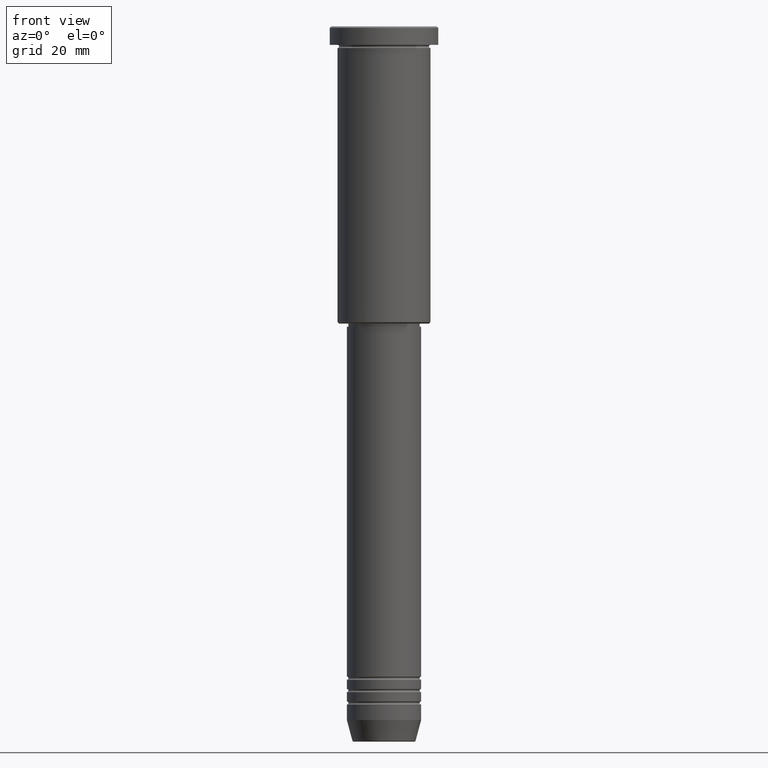
[diagram: clean part render]
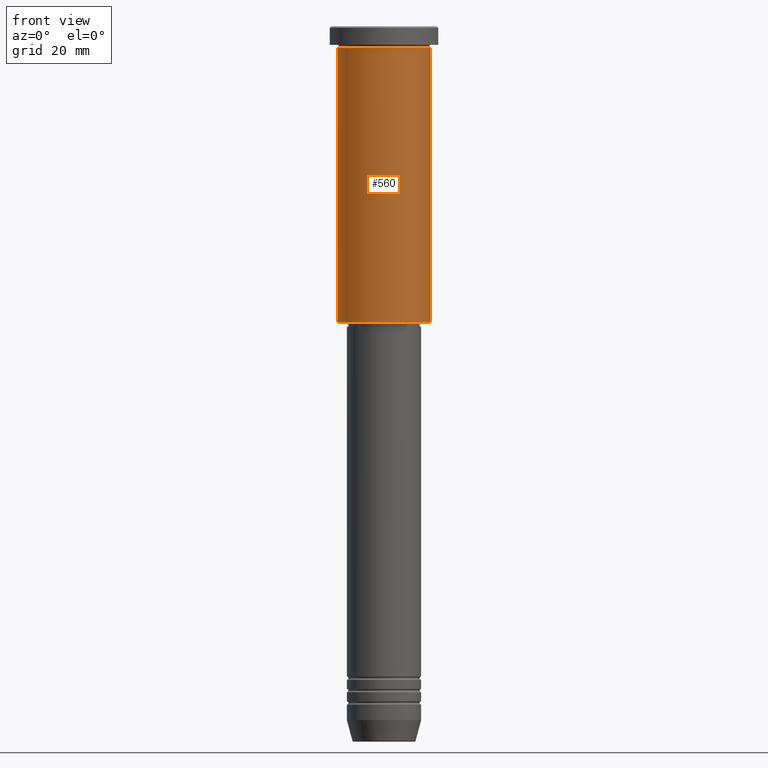
[diagram: same view with one face highlighted and labeled with its STEP entity id]
A machine part, front view. The second image highlights one B-rep face of the part: STEP entity #560.
In plain terms, the highlighted cylindrical surface (partial cylindrical patch) has radius 15 mm, axis along (-0, -0, 1).
Its self-contained STEP definition (entity closure, byte-faithful):
#52 = CYLINDRICAL_SURFACE ( 'NONE', #57, 15.00000000000000000 ) ;
#57 = AXIS2_PLACEMENT_3D ( 'NONE', #696, #1055, #231 ) ;
#74 = AXIS2_PLACEMENT_3D ( 'NONE', #1011, #763, #672 ) ;
#129 = LINE ( 'NONE', #480, #1163 ) ;
#138 = CIRCLE ( 'NONE', #691, 15.00000000000000000 ) ;
#140 = ORIENTED_EDGE ( 'NONE', *, *, #805, .F. ) ;
#231 = DIRECTION ( 'NONE',  ( 1.000000000000000000, 0.000000000000000000, 0.000000000000000000 ) ) ;
#233 = EDGE_CURVE ( 'NONE', #377, #479, #970, .T. ) ;
#248 = CARTESIAN_POINT ( 'NONE',  ( 0.000000000000000000, 0.000000000000000000, -6.999999999999995559 ) ) ;
#281 = VERTEX_POINT ( 'NONE', #499 ) ;
#377 = VERTEX_POINT ( 'NONE', #1049 ) ;
#478 = CARTESIAN_POINT ( 'NONE',  ( 15.00000000000000000, 0.000000000000000000, -95.49999999999995737 ) ) ;
#479 = VERTEX_POINT ( 'NONE', #478 ) ;
#480 = CARTESIAN_POINT ( 'NONE',  ( 15.00000000000000000, 0.000000000000000000, 0.000000000000000000 ) ) ;
#490 = VERTEX_POINT ( 'NONE', #611 ) ;
#499 = CARTESIAN_POINT ( 'NONE',  ( 15.00000000000000000, 0.000000000000000000, -6.999999999999995559 ) ) ;
#544 = EDGE_LOOP ( 'NONE', ( #1098, #559, #693, #140 ) ) ;
#559 = ORIENTED_EDGE ( 'NONE', *, *, #233, .T. ) ;
#560 = ADVANCED_FACE ( 'NONE', ( #1129 ), #52, .T. ) ;
#611 = CARTESIAN_POINT ( 'NONE',  ( -15.00000000000000000, 1.836970198721029589E-15, -6.999999999999995559 ) ) ;
#623 = VECTOR ( 'NONE', #1086, 1000.000000000000000 ) ;
#649 = DIRECTION ( 'NONE',  ( -0.000000000000000000, -0.000000000000000000, 1.000000000000000000 ) ) ;
#672 = DIRECTION ( 'NONE',  ( -1.000000000000000000, 0.000000000000000000, 0.000000000000000000 ) ) ;
#691 = AXIS2_PLACEMENT_3D ( 'NONE', #248, #1004, #991 ) ;
#693 = ORIENTED_EDGE ( 'NONE', *, *, #927, .T. ) ;
#696 = CARTESIAN_POINT ( 'NONE',  ( 0.000000000000000000, 0.000000000000000000, 0.000000000000000000 ) ) ;
#736 = CARTESIAN_POINT ( 'NONE',  ( -15.00000000000000000, 1.836970198721029589E-15, 0.000000000000000000 ) ) ;
#763 = DIRECTION ( 'NONE',  ( -0.000000000000000000, -0.000000000000000000, 1.000000000000000000 ) ) ;
#805 = EDGE_CURVE ( 'NONE', #490, #281, #138, .T. ) ;
#806 = LINE ( 'NONE', #736, #623 ) ;
#927 = EDGE_CURVE ( 'NONE', #479, #281, #129, .T. ) ;
#970 = CIRCLE ( 'NONE', #74, 15.00000000000000000 ) ;
#991 = DIRECTION ( 'NONE',  ( 1.000000000000000000, 0.000000000000000000, 0.000000000000000000 ) ) ;
#994 = EDGE_CURVE ( 'NONE', #377, #490, #806, .T. ) ;
#1004 = DIRECTION ( 'NONE',  ( -0.000000000000000000, -0.000000000000000000, 1.000000000000000000 ) ) ;
#1011 = CARTESIAN_POINT ( 'NONE',  ( 0.000000000000000000, 0.000000000000000000, -95.49999999999995737 ) ) ;
#1049 = CARTESIAN_POINT ( 'NONE',  ( -15.00000000000000000, 1.836970198721029589E-15, -95.49999999999995737 ) ) ;
#1055 = DIRECTION ( 'NONE',  ( -0.000000000000000000, -0.000000000000000000, 1.000000000000000000 ) ) ;
#1086 = DIRECTION ( 'NONE',  ( -0.000000000000000000, -0.000000000000000000, 1.000000000000000000 ) ) ;
#1098 = ORIENTED_EDGE ( 'NONE', *, *, #994, .F. ) ;
#1129 = FACE_OUTER_BOUND ( 'NONE', #544, .T. ) ;
#1163 = VECTOR ( 'NONE', #649, 1000.000000000000000 ) ;